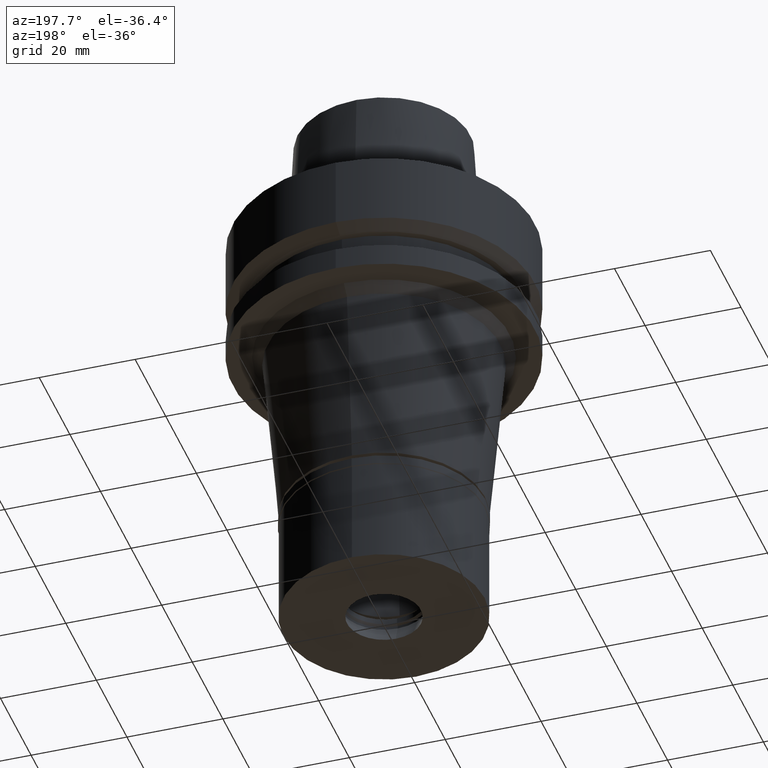
[diagram: clean part render]
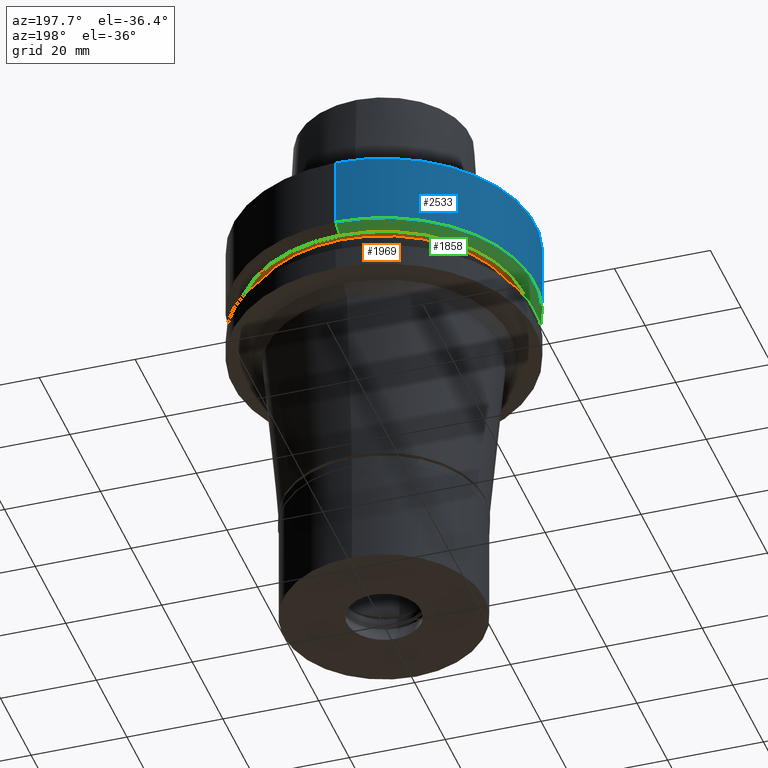
[diagram: same view with three faces highlighted in distinct colors, each labeled with its STEP entity id]
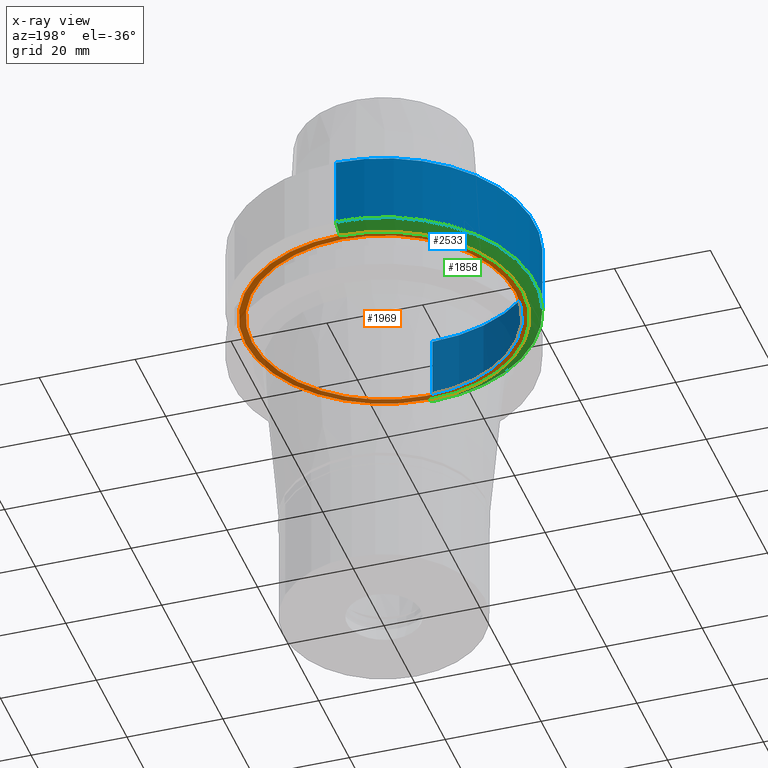
[diagram: x-ray of the same camera — body ghosted, the three highlighted faces saturated]
A machine part, auxiliary view with three faces highlighted in distinct colors.
The next image is the same camera in x-ray (body ghosted, the three faces saturated) — at least one of them is partly hidden behind the body in this view.
Their STEP definitions:

[orange] entity #1969 — the highlighted planar face has unit normal (0, 0, 1).
#56 = CARTESIAN_POINT ( 'NONE',  ( 0.0000000000000000000, 0.0000000000000000000, -16.12500000000000000 ) ) ;
#112 = CARTESIAN_POINT ( 'NONE',  ( 0.0000000000000000000, 0.0000000000000000000, -16.12500000000000000 ) ) ;
#118 = CIRCLE ( 'NONE', #2445, 27.50000000000000000 ) ;
#157 = CARTESIAN_POINT ( 'NONE',  ( 0.0000000000000000000, 0.0000000000000000000, -16.12500000000000000 ) ) ;
#207 = DIRECTION ( 'NONE',  ( 0.0000000000000000000, 0.0000000000000000000, 1.000000000000000000 ) ) ;
#278 = AXIS2_PLACEMENT_3D ( 'NONE', #1961, #2864, #2182 ) ;
#414 = EDGE_CURVE ( 'NONE', #993, #946, #1927, .T. ) ;
#697 = AXIS2_PLACEMENT_3D ( 'NONE', #1509, #207, #1300 ) ;
#811 = DIRECTION ( 'NONE',  ( 0.0000000000000000000, 0.0000000000000000000, 1.000000000000000000 ) ) ;
#853 = FACE_BOUND ( 'NONE', #1817, .T. ) ;
#857 = CARTESIAN_POINT ( 'NONE',  ( 0.0000000000000000000, 28.89759526419000224, -16.12500000000000000 ) ) ;
#896 = ORIENTED_EDGE ( 'NONE', *, *, #1628, .F. ) ;
#946 = VERTEX_POINT ( 'NONE', #857 ) ;
#952 = DIRECTION ( 'NONE',  ( 0.0000000000000000000, 1.000000000000000000, 0.0000000000000000000 ) ) ;
#993 = VERTEX_POINT ( 'NONE', #1054 ) ;
#995 = ORIENTED_EDGE ( 'NONE', *, *, #1144, .F. ) ;
#1011 = FACE_OUTER_BOUND ( 'NONE', #1883, .T. ) ;
#1037 = DIRECTION ( 'NONE',  ( 1.000000000000000000, 0.0000000000000000000, 0.0000000000000000000 ) ) ;
#1054 = CARTESIAN_POINT ( 'NONE',  ( 0.0000000000000000000, -28.89759526419000224, -16.12500000000000000 ) ) ;
#1144 = EDGE_CURVE ( 'NONE', #1165, #2680, #118, .T. ) ;
#1165 = VERTEX_POINT ( 'NONE', #2022 ) ;
#1166 = ORIENTED_EDGE ( 'NONE', *, *, #2529, .F. ) ;
#1237 = CARTESIAN_POINT ( 'NONE',  ( 0.0000000000000000000, -27.50000000000000000, -16.12500000000000000 ) ) ;
#1258 = PLANE ( 'NONE',  #2691 ) ;
#1300 = DIRECTION ( 'NONE',  ( 0.0000000000000000000, -1.000000000000000000, 0.0000000000000000000 ) ) ;
#1509 = CARTESIAN_POINT ( 'NONE',  ( 0.0000000000000000000, 0.0000000000000000000, -16.12500000000000000 ) ) ;
#1628 = EDGE_CURVE ( 'NONE', #946, #993, #1834, .T. ) ;
#1817 = EDGE_LOOP ( 'NONE', ( #995, #1166 ) ) ;
#1834 = CIRCLE ( 'NONE', #278, 28.89759526419000224 ) ;
#1883 = EDGE_LOOP ( 'NONE', ( #896, #2033 ) ) ;
#1927 = CIRCLE ( 'NONE', #697, 28.89759526419000224 ) ;
#1961 = CARTESIAN_POINT ( 'NONE',  ( 0.0000000000000000000, 0.0000000000000000000, -16.12500000000000000 ) ) ;
#1969 = ADVANCED_FACE ( 'NONE', ( #1011, #853 ), #1258, .F. ) ;
#2022 = CARTESIAN_POINT ( 'NONE',  ( 0.0000000000000000000, 27.50000000000000000, -16.12500000000000000 ) ) ;
#2033 = ORIENTED_EDGE ( 'NONE', *, *, #414, .F. ) ;
#2057 = DIRECTION ( 'NONE',  ( 0.0000000000000000000, -1.000000000000000000, 0.0000000000000000000 ) ) ;
#2182 = DIRECTION ( 'NONE',  ( 0.0000000000000000000, 1.000000000000000000, 0.0000000000000000000 ) ) ;
#2263 = DIRECTION ( 'NONE',  ( 0.0000000000000000000, 0.0000000000000000000, -1.000000000000000000 ) ) ;
#2368 = AXIS2_PLACEMENT_3D ( 'NONE', #112, #2753, #2057 ) ;
#2445 = AXIS2_PLACEMENT_3D ( 'NONE', #56, #2263, #952 ) ;
#2529 = EDGE_CURVE ( 'NONE', #2680, #1165, #2656, .T. ) ;
#2656 = CIRCLE ( 'NONE', #2368, 27.50000000000000000 ) ;
#2680 = VERTEX_POINT ( 'NONE', #1237 ) ;
#2691 = AXIS2_PLACEMENT_3D ( 'NONE', #157, #811, #1037 ) ;
#2753 = DIRECTION ( 'NONE',  ( 0.0000000000000000000, 0.0000000000000000000, -1.000000000000000000 ) ) ;
#2864 = DIRECTION ( 'NONE',  ( 0.0000000000000000000, 0.0000000000000000000, 1.000000000000000000 ) ) ;

[blue] entity #2533 — the highlighted cylindrical surface (partial cylindrical patch) has radius 31.5 mm, axis along (0, 0, 1).
#23 = ORIENTED_EDGE ( 'NONE', *, *, #384, .T. ) ;
#40 = CARTESIAN_POINT ( 'NONE',  ( 0.0000000000000000000, 0.0000000000000000000, 0.0000000000000000000 ) ) ;
#173 = EDGE_CURVE ( 'NONE', #629, #1935, #2582, .T. ) ;
#184 = VERTEX_POINT ( 'NONE', #592 ) ;
#325 = EDGE_LOOP ( 'NONE', ( #23, #2270, #1646, #1428 ) ) ;
#384 = EDGE_CURVE ( 'NONE', #1935, #184, #2035, .T. ) ;
#592 = CARTESIAN_POINT ( 'NONE',  ( 0.0000000000000000000, -31.50000000000000000, -14.62250092523999889 ) ) ;
#629 = VERTEX_POINT ( 'NONE', #1598 ) ;
#671 = CARTESIAN_POINT ( 'NONE',  ( 0.0000000000000000000, -31.50000000000000000, 0.0000000000000000000 ) ) ;
#687 = CIRCLE ( 'NONE', #1786, 31.50000000000000000 ) ;
#794 = FACE_OUTER_BOUND ( 'NONE', #325, .T. ) ;
#822 = CARTESIAN_POINT ( 'NONE',  ( 0.0000000000000000000, 31.50000000000000000, -14.62250092523999889 ) ) ;
#859 = LINE ( 'NONE', #1533, #959 ) ;
#901 = DIRECTION ( 'NONE',  ( 0.0000000000000000000, 1.000000000000000000, 0.0000000000000000000 ) ) ;
#959 = VECTOR ( 'NONE', #1094, 1000.000000000000000 ) ;
#1023 = CARTESIAN_POINT ( 'NONE',  ( 0.0000000000000000000, 31.50000000000000000, 0.0000000000000000000 ) ) ;
#1094 = DIRECTION ( 'NONE',  ( 0.0000000000000000000, -4.130355870612999632E-14, -1.000000000000000000 ) ) ;
#1184 = CARTESIAN_POINT ( 'NONE',  ( 0.0000000000000000000, 0.0000000000000000000, -87.87500000000000000 ) ) ;
#1217 = EDGE_CURVE ( 'NONE', #2290, #629, #687, .T. ) ;
#1239 = AXIS2_PLACEMENT_3D ( 'NONE', #2648, #2254, #901 ) ;
#1410 = DIRECTION ( 'NONE',  ( 0.0000000000000000000, 0.0000000000000000000, 1.000000000000000000 ) ) ;
#1428 = ORIENTED_EDGE ( 'NONE', *, *, #173, .T. ) ;
#1480 = DIRECTION ( 'NONE',  ( 0.0000000000000000000, 4.130355870612999632E-14, -1.000000000000000000 ) ) ;
#1533 = CARTESIAN_POINT ( 'NONE',  ( 0.0000000000000000000, -31.50000000000000000, 0.0000000000000000000 ) ) ;
#1583 = EDGE_CURVE ( 'NONE', #2290, #184, #859, .T. ) ;
#1597 = DIRECTION ( 'NONE',  ( 0.0000000000000000000, 0.0000000000000000000, -1.000000000000000000 ) ) ;
#1598 = CARTESIAN_POINT ( 'NONE',  ( 0.0000000000000000000, 31.50000000000000000, 0.0000000000000000000 ) ) ;
#1646 = ORIENTED_EDGE ( 'NONE', *, *, #1217, .T. ) ;
#1786 = AXIS2_PLACEMENT_3D ( 'NONE', #40, #1597, #2297 ) ;
#1885 = DIRECTION ( 'NONE',  ( 0.0000000000000000000, 1.000000000000000000, 0.0000000000000000000 ) ) ;
#1935 = VERTEX_POINT ( 'NONE', #822 ) ;
#2035 = CIRCLE ( 'NONE', #1239, 31.50000000000000000 ) ;
#2254 = DIRECTION ( 'NONE',  ( 0.0000000000000000000, 0.0000000000000000000, 1.000000000000000000 ) ) ;
#2270 = ORIENTED_EDGE ( 'NONE', *, *, #1583, .F. ) ;
#2290 = VERTEX_POINT ( 'NONE', #671 ) ;
#2297 = DIRECTION ( 'NONE',  ( 0.0000000000000000000, -1.000000000000000000, 0.0000000000000000000 ) ) ;
#2300 = CYLINDRICAL_SURFACE ( 'NONE', #2741, 31.50000000000000000 ) ;
#2533 = ADVANCED_FACE ( 'NONE', ( #794 ), #2300, .T. ) ;
#2582 = LINE ( 'NONE', #1023, #2736 ) ;
#2648 = CARTESIAN_POINT ( 'NONE',  ( 0.0000000000000000000, 0.0000000000000000000, -14.62250092523999889 ) ) ;
#2736 = VECTOR ( 'NONE', #1480, 1000.000000000000000 ) ;
#2741 = AXIS2_PLACEMENT_3D ( 'NONE', #1184, #1410, #1885 ) ;

[green] entity #1858 — the highlighted conical surface has half-angle 60 deg.
#84 = AXIS2_PLACEMENT_3D ( 'NONE', #766, #1643, #1366 ) ;
#184 = VERTEX_POINT ( 'NONE', #592 ) ;
#278 = AXIS2_PLACEMENT_3D ( 'NONE', #1961, #2864, #2182 ) ;
#384 = EDGE_CURVE ( 'NONE', #1935, #184, #2035, .T. ) ;
#385 = LINE ( 'NONE', #1514, #2803 ) ;
#463 = CONICAL_SURFACE ( 'NONE', #84, 30.19879763209999979, 1.047197551196400456 ) ;
#592 = CARTESIAN_POINT ( 'NONE',  ( 0.0000000000000000000, -31.50000000000000000, -14.62250092523999889 ) ) ;
#751 = EDGE_CURVE ( 'NONE', #184, #993, #1306, .T. ) ;
#766 = CARTESIAN_POINT ( 'NONE',  ( 0.0000000000000000000, 0.0000000000000000000, -15.37375046262000033 ) ) ;
#822 = CARTESIAN_POINT ( 'NONE',  ( 0.0000000000000000000, 31.50000000000000000, -14.62250092523999889 ) ) ;
#850 = ORIENTED_EDGE ( 'NONE', *, *, #751, .F. ) ;
#857 = CARTESIAN_POINT ( 'NONE',  ( 0.0000000000000000000, 28.89759526419000224, -16.12500000000000000 ) ) ;
#877 = VECTOR ( 'NONE', #2594, 1000.000000000000000 ) ;
#901 = DIRECTION ( 'NONE',  ( 0.0000000000000000000, 1.000000000000000000, 0.0000000000000000000 ) ) ;
#946 = VERTEX_POINT ( 'NONE', #857 ) ;
#993 = VERTEX_POINT ( 'NONE', #1054 ) ;
#1054 = CARTESIAN_POINT ( 'NONE',  ( 0.0000000000000000000, -28.89759526419000224, -16.12500000000000000 ) ) ;
#1087 = EDGE_CURVE ( 'NONE', #1935, #946, #385, .T. ) ;
#1168 = FACE_OUTER_BOUND ( 'NONE', #2540, .T. ) ;
#1239 = AXIS2_PLACEMENT_3D ( 'NONE', #2648, #2254, #901 ) ;
#1306 = LINE ( 'NONE', #2416, #877 ) ;
#1366 = DIRECTION ( 'NONE',  ( 0.0000000000000000000, 1.000000000000000000, 0.0000000000000000000 ) ) ;
#1470 = ORIENTED_EDGE ( 'NONE', *, *, #384, .F. ) ;
#1514 = CARTESIAN_POINT ( 'NONE',  ( 0.0000000000000000000, 31.50000000000000000, -14.62250092523999889 ) ) ;
#1617 = ORIENTED_EDGE ( 'NONE', *, *, #1087, .T. ) ;
#1628 = EDGE_CURVE ( 'NONE', #946, #993, #1834, .T. ) ;
#1641 = ORIENTED_EDGE ( 'NONE', *, *, #1628, .T. ) ;
#1643 = DIRECTION ( 'NONE',  ( 0.0000000000000000000, 0.0000000000000000000, 1.000000000000000000 ) ) ;
#1834 = CIRCLE ( 'NONE', #278, 28.89759526419000224 ) ;
#1858 = ADVANCED_FACE ( 'NONE', ( #1168 ), #463, .T. ) ;
#1904 = DIRECTION ( 'NONE',  ( 0.0000000000000000000, -0.8660254037843856390, -0.5000000000000918154 ) ) ;
#1935 = VERTEX_POINT ( 'NONE', #822 ) ;
#1961 = CARTESIAN_POINT ( 'NONE',  ( 0.0000000000000000000, 0.0000000000000000000, -16.12500000000000000 ) ) ;
#2035 = CIRCLE ( 'NONE', #1239, 31.50000000000000000 ) ;
#2182 = DIRECTION ( 'NONE',  ( 0.0000000000000000000, 1.000000000000000000, 0.0000000000000000000 ) ) ;
#2254 = DIRECTION ( 'NONE',  ( 0.0000000000000000000, 0.0000000000000000000, 1.000000000000000000 ) ) ;
#2416 = CARTESIAN_POINT ( 'NONE',  ( 0.0000000000000000000, -31.50000000000000000, -14.62250092523999889 ) ) ;
#2540 = EDGE_LOOP ( 'NONE', ( #1641, #850, #1470, #1617 ) ) ;
#2594 = DIRECTION ( 'NONE',  ( 0.0000000000000000000, 0.8660254037843856390, -0.5000000000000918154 ) ) ;
#2648 = CARTESIAN_POINT ( 'NONE',  ( 0.0000000000000000000, 0.0000000000000000000, -14.62250092523999889 ) ) ;
#2803 = VECTOR ( 'NONE', #1904, 1000.000000000000000 ) ;
#2864 = DIRECTION ( 'NONE',  ( 0.0000000000000000000, 0.0000000000000000000, 1.000000000000000000 ) ) ;